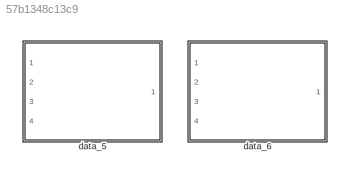
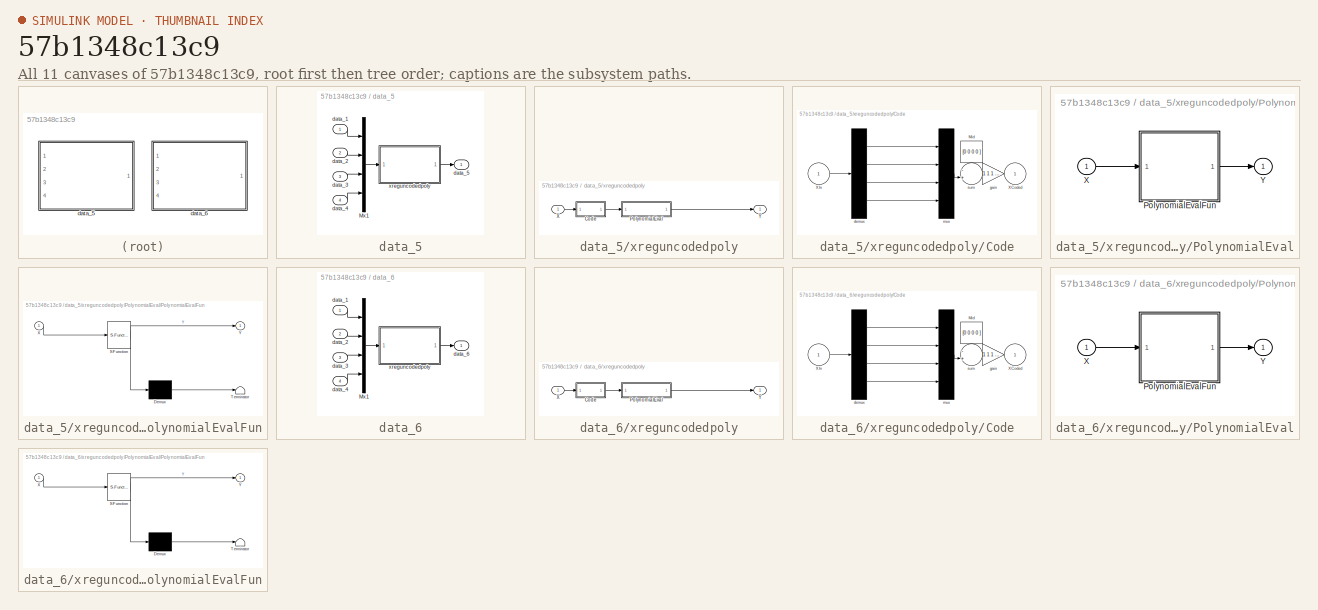
[diagram: thumbnail index - all 11 canvases of the model, root first then tree order]
MODEL slx_57b1348c13c9
KIND model
CONFIG AbsTol = auto
CONFIG EnableMultiTasking = off
CONFIG FixedStep = auto
CONFIG MaxStep = auto
CONFIG MinStep = auto
CONFIG RelTol = 1e-3
CONFIG SampleTimeConstraint = Unconstrained
CONFIG SolverName = VariableStepAuto
CONFIG StartTime = 0.0
CONFIG StopTime = 10.0
BLOCK [SubSystem] data_5
  Ports = [4, 1]
  RequestExecContextInheritance = off
BLOCK [Mux] data_5/Mx1
  DisplayOption = bar
  Ports = [4, 1]
BLOCK [Inport] data_5/data_1
BLOCK [Inport] data_5/data_2
  Port = 2
BLOCK [Inport] data_5/data_3
  Port = 3
BLOCK [Inport] data_5/data_4
  Port = 4
BLOCK [Outport] data_5/data_5
BLOCK [SubSystem] data_5/xreguncodedpoly
  Ports = [1, 1]
  RequestExecContextInheritance = off
  UserDataPersistent = on
BLOCK [SubSystem] data_5/xreguncodedpoly/Code
  Ports = [1, 1]
  RequestExecContextInheritance = off
BLOCK [Constant] data_5/xreguncodedpoly/Code/Mid
  NameLocation = right
  Value = [0 0 0 0 ]
BLOCK [Outport] data_5/xreguncodedpoly/Code/XCoded
BLOCK [Inport] data_5/xreguncodedpoly/Code/XIn
BLOCK [Demux] data_5/xreguncodedpoly/Code/demux
  Ports = [1, 4]
BLOCK [Gain] data_5/xreguncodedpoly/Code/gain
  Gain = [1 1 1 1 ]
BLOCK [Mux] data_5/xreguncodedpoly/Code/mux
  DisplayOption = bar
  Ports = [4, 1]
BLOCK [Sum] data_5/xreguncodedpoly/Code/sum
  Inputs = -+|
  Ports = [2, 1]
BLOCK [SubSystem] data_5/xreguncodedpoly/PolynomialEval
  Ports = [1, 1]
  RequestExecContextInheritance = off
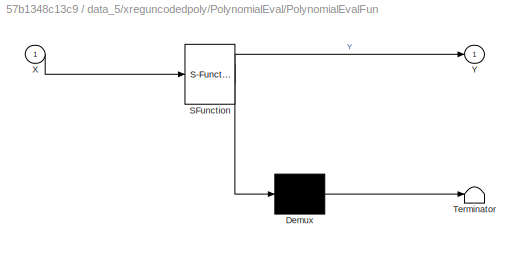
BLOCK [SubSystem] data_5/xreguncodedpoly/PolynomialEval/PolynomialEvalFun
  ErrorFcn = Stateflow.Translate.translate
  PermitHierarchicalResolution = ExplicitOnly
  Ports = [1, 1]
  RequestExecContextInheritance = off
  SFBlockType = MATLAB Function
  TreatAsAtomicUnit = on
BLOCK [Demux] data_5/xreguncodedpoly/PolynomialEval/PolynomialEvalFun/ Demux 
  Outputs = 1
  Ports = [1, 1]
BLOCK [S-Function] data_5/xreguncodedpoly/PolynomialEval/PolynomialEvalFun/ SFunction 
  EnableBusSupport = off
  FunctionName = sf_sfun
  Parameters = coeffs
  PortCounts = [1 2]
  Ports = [1, 2]
  SFcnIsStateOwnerBlock = off
  SFunctionDeploymentMode = off
  Tag = Stateflow S-Function 2
BLOCK [Terminator] data_5/xreguncodedpoly/PolynomialEval/PolynomialEvalFun/ Terminator 
BLOCK [Inport] data_5/xreguncodedpoly/PolynomialEval/PolynomialEvalFun/X
BLOCK [Outport] data_5/xreguncodedpoly/PolynomialEval/PolynomialEvalFun/Y
BLOCK [Inport] data_5/xreguncodedpoly/PolynomialEval/X
BLOCK [Outport] data_5/xreguncodedpoly/PolynomialEval/Y
BLOCK [Inport] data_5/xreguncodedpoly/X
BLOCK [Outport] data_5/xreguncodedpoly/Y
BLOCK [SubSystem] data_6
  Ports = [4, 1]
  RequestExecContextInheritance = off
BLOCK [Mux] data_6/Mx1
  DisplayOption = bar
  Ports = [4, 1]
BLOCK [Inport] data_6/data_1
BLOCK [Inport] data_6/data_2
  Port = 2
BLOCK [Inport] data_6/data_3
  Port = 3
BLOCK [Inport] data_6/data_4
  Port = 4
BLOCK [Outport] data_6/data_6
BLOCK [SubSystem] data_6/xreguncodedpoly
  Ports = [1, 1]
  RequestExecContextInheritance = off
  UserDataPersistent = on
BLOCK [SubSystem] data_6/xreguncodedpoly/Code
  Ports = [1, 1]
  RequestExecContextInheritance = off
BLOCK [Constant] data_6/xreguncodedpoly/Code/Mid
  NameLocation = right
  Value = [0 0 0 0 ]
BLOCK [Outport] data_6/xreguncodedpoly/Code/XCoded
BLOCK [Inport] data_6/xreguncodedpoly/Code/XIn
BLOCK [Demux] data_6/xreguncodedpoly/Code/demux
  Ports = [1, 4]
BLOCK [Gain] data_6/xreguncodedpoly/Code/gain
  Gain = [1 1 1 1 ]
BLOCK [Mux] data_6/xreguncodedpoly/Code/mux
  DisplayOption = bar
  Ports = [4, 1]
BLOCK [Sum] data_6/xreguncodedpoly/Code/sum
  Inputs = -+|
  Ports = [2, 1]
BLOCK [SubSystem] data_6/xreguncodedpoly/PolynomialEval
  Ports = [1, 1]
  RequestExecContextInheritance = off
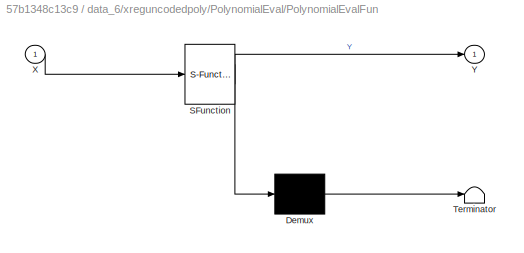
BLOCK [SubSystem] data_6/xreguncodedpoly/PolynomialEval/PolynomialEvalFun
  ErrorFcn = Stateflow.Translate.translate
  PermitHierarchicalResolution = ExplicitOnly
  Ports = [1, 1]
  RequestExecContextInheritance = off
  SFBlockType = MATLAB Function
  TreatAsAtomicUnit = on
BLOCK [Demux] data_6/xreguncodedpoly/PolynomialEval/PolynomialEvalFun/ Demux 
  Outputs = 1
  Ports = [1, 1]
BLOCK [S-Function] data_6/xreguncodedpoly/PolynomialEval/PolynomialEvalFun/ SFunction 
  EnableBusSupport = off
  FunctionName = sf_sfun
  Parameters = coeffs
  PortCounts = [1 2]
  Ports = [1, 2]
  SFcnIsStateOwnerBlock = off
  SFunctionDeploymentMode = off
  Tag = Stateflow S-Function 1
BLOCK [Terminator] data_6/xreguncodedpoly/PolynomialEval/PolynomialEvalFun/ Terminator 
BLOCK [Inport] data_6/xreguncodedpoly/PolynomialEval/PolynomialEvalFun/X
BLOCK [Outport] data_6/xreguncodedpoly/PolynomialEval/PolynomialEvalFun/Y
BLOCK [Inport] data_6/xreguncodedpoly/PolynomialEval/X
BLOCK [Outport] data_6/xreguncodedpoly/PolynomialEval/Y
BLOCK [Inport] data_6/xreguncodedpoly/X
BLOCK [Outport] data_6/xreguncodedpoly/Y
LINE data_5/Mx1:1 -> data_5/xreguncodedpoly:1
LINE data_5/data_1:1 -> data_5/Mx1:1
LINE data_5/data_2:1 -> data_5/Mx1:2
LINE data_5/data_3:1 -> data_5/Mx1:3
LINE data_5/data_4:1 -> data_5/Mx1:4
LINE data_5/xreguncodedpoly/Code/Mid:1 -> data_5/xreguncodedpoly/Code/sum:1
LINE data_5/xreguncodedpoly/Code/XIn:1 -> data_5/xreguncodedpoly/Code/demux:1
LINE data_5/xreguncodedpoly/Code/demux:1 -> data_5/xreguncodedpoly/Code/mux:1
LINE data_5/xreguncodedpoly/Code/demux:2 -> data_5/xreguncodedpoly/Code/mux:2
LINE data_5/xreguncodedpoly/Code/demux:3 -> data_5/xreguncodedpoly/Code/mux:3
LINE data_5/xreguncodedpoly/Code/demux:4 -> data_5/xreguncodedpoly/Code/mux:4
LINE data_5/xreguncodedpoly/Code/gain:1 -> data_5/xreguncodedpoly/Code/XCoded:1
LINE data_5/xreguncodedpoly/Code/mux:1 -> data_5/xreguncodedpoly/Code/sum:2
LINE data_5/xreguncodedpoly/Code/sum:1 -> data_5/xreguncodedpoly/Code/gain:1
LINE data_5/xreguncodedpoly/Code:1 -> data_5/xreguncodedpoly/PolynomialEval:1
LINE data_5/xreguncodedpoly/PolynomialEval/PolynomialEvalFun:1 -> data_5/xreguncodedpoly/PolynomialEval/Y:1
LINE data_5/xreguncodedpoly/PolynomialEval/X:1 -> data_5/xreguncodedpoly/PolynomialEval/PolynomialEvalFun:1
LINE data_5/xreguncodedpoly/PolynomialEval:1 -> data_5/xreguncodedpoly/Y:1
LINE data_5/xreguncodedpoly/X:1 -> data_5/xreguncodedpoly/Code:1
LINE data_5/xreguncodedpoly:1 -> data_5/data_5:1
LINE data_6/Mx1:1 -> data_6/xreguncodedpoly:1
LINE data_6/data_1:1 -> data_6/Mx1:1
LINE data_6/data_2:1 -> data_6/Mx1:2
LINE data_6/data_3:1 -> data_6/Mx1:3
LINE data_6/data_4:1 -> data_6/Mx1:4
LINE data_6/xreguncodedpoly/Code/Mid:1 -> data_6/xreguncodedpoly/Code/sum:1
LINE data_6/xreguncodedpoly/Code/XIn:1 -> data_6/xreguncodedpoly/Code/demux:1
LINE data_6/xreguncodedpoly/Code/demux:1 -> data_6/xreguncodedpoly/Code/mux:1
LINE data_6/xreguncodedpoly/Code/demux:2 -> data_6/xreguncodedpoly/Code/mux:2
LINE data_6/xreguncodedpoly/Code/demux:3 -> data_6/xreguncodedpoly/Code/mux:3
LINE data_6/xreguncodedpoly/Code/demux:4 -> data_6/xreguncodedpoly/Code/mux:4
LINE data_6/xreguncodedpoly/Code/gain:1 -> data_6/xreguncodedpoly/Code/XCoded:1
LINE data_6/xreguncodedpoly/Code/mux:1 -> data_6/xreguncodedpoly/Code/sum:2
LINE data_6/xreguncodedpoly/Code/sum:1 -> data_6/xreguncodedpoly/Code/gain:1
LINE data_6/xreguncodedpoly/Code:1 -> data_6/xreguncodedpoly/PolynomialEval:1
LINE data_6/xreguncodedpoly/PolynomialEval/PolynomialEvalFun:1 -> data_6/xreguncodedpoly/PolynomialEval/Y:1
LINE data_6/xreguncodedpoly/PolynomialEval/X:1 -> data_6/xreguncodedpoly/PolynomialEval/PolynomialEvalFun:1
LINE data_6/xreguncodedpoly/PolynomialEval:1 -> data_6/xreguncodedpoly/Y:1
LINE data_6/xreguncodedpoly/X:1 -> data_6/xreguncodedpoly/Code:1
LINE data_6/xreguncodedpoly:1 -> data_6/data_6:1
CHART data_6/xreguncodedpoly/PolynomialEval/PolynomialEvalFun states=1 transitions=1
  STATE_LABEL 'eML_blk_kernel()'
  STATE_LABEL 'SCRIPT:\nfunction Y = fcn(X, coeffs)\n%#codegen\n\n% This function specifies a polynomial with 4 inputs: \n% \tTR\t = order 3\n% \tA\t = order 3\n% \tL\t = order 2\n% \tT\t = order 2\n% Maximum interaction order = 3\n%\n% The model definition is:\n% -5498.3094 - 766.83107*TR + 549.31751*A - 44.711683*L - 2.1149066*T +   \n% 3.5641621*TR^2 + 0.0049845809*TR*A + 0.097951231*TR*L - 74.970231*TR*T +\n% 82.339876*A^2 - 0.55...<+671ch>'
CHART data_5/xreguncodedpoly/PolynomialEval/PolynomialEvalFun states=1 transitions=1
  STATE_LABEL 'eML_blk_kernel()'
  STATE_LABEL 'SCRIPT:\nfunction Y = fcn(X, coeffs)\n%#codegen\n\n% This function specifies a polynomial with 4 inputs: \n% \tTR\t = order 3\n% \tA\t = order 3\n% \tL\t = order 2\n% \tT\t = order 2\n% Maximum interaction order = 3\n%\n% The model definition is:\n% -633.36 - 58.95065*TR + 1.34878*A + 0.7781926*L + 0.1083333*T - 0.3090848*TR^2 -\n% 0.00138335*TR*A + 0.01947693*TR*L + 0.01493413*TR*T + 18.90003*A^2 -            \n% 0.13...<+711ch>'
CHART  states=0 transitions=0
CHART  states=0 transitions=0
